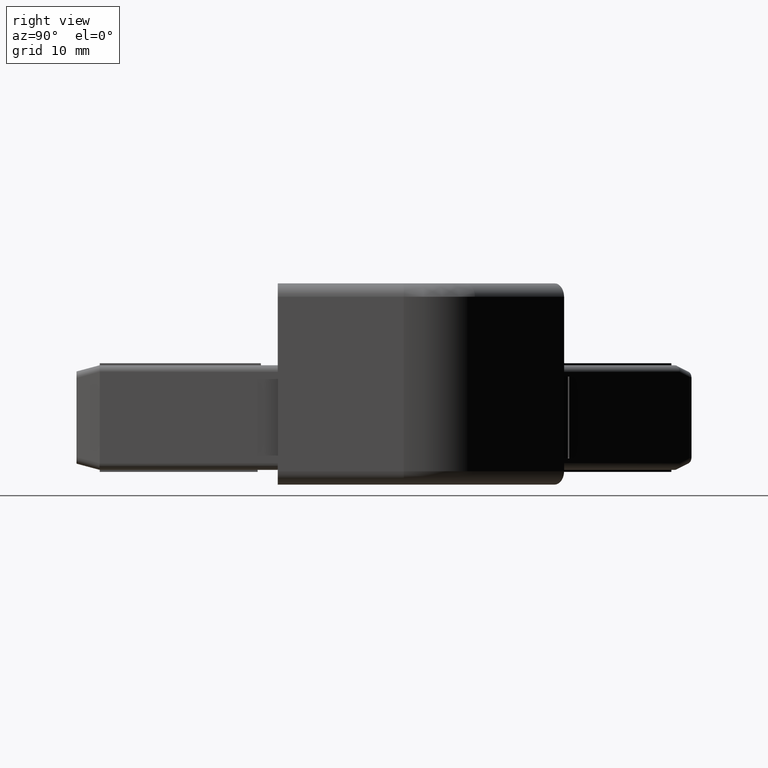
[diagram: clean part render]
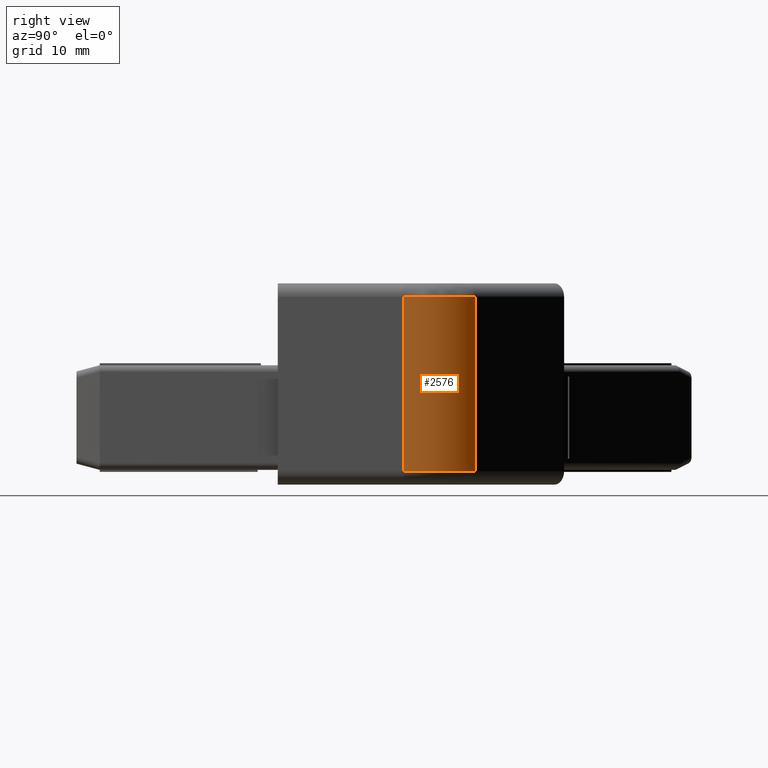
[diagram: same view with one face highlighted and labeled with its STEP entity id]
A machine part, right view. The second image highlights one B-rep face of the part: STEP entity #2576.
In plain terms, the highlighted cylindrical surface (partial cylindrical patch) has radius 15 mm, axis along (0, 0, -1).
Its self-contained STEP definition (entity closure, byte-faithful):
#1407=CARTESIAN_POINT('',(10.000000000000229,48.771067811866786,-8.000000000000155));
#1408=VERTEX_POINT('',#1407);
#1458=CARTESIAN_POINT('',(5.606601717798413,59.377669529665027,-8.000000000000156));
#1459=VERTEX_POINT('',#1458);
#1573=CARTESIAN_POINT('',(-4.999999999999772,48.771067811866786,-8.000000000000156));
#1574=DIRECTION('',(1.224647E-016,0.0,-1.0));
#1575=DIRECTION('',(-1.0,0.0,-1.224647E-016));
#1576=AXIS2_PLACEMENT_3D('',#1573,#1574,#1575);
#1577=CIRCLE('',#1576,14.999999999999970);
#1578=EDGE_CURVE('',#1459,#1408,#1577,.T.);
#2423=CARTESIAN_POINT('',(5.606601717798410,59.377669529664971,17.999999999999687));
#2424=VERTEX_POINT('',#2423);
#2474=CARTESIAN_POINT('',(10.000000000000226,48.771067811866786,17.999999999999687));
#2475=VERTEX_POINT('',#2474);
#2512=CARTESIAN_POINT('',(5.606601717798413,59.377669529664971,-8.000000000000156));
#2513=DIRECTION('',(0.0,0.0,1.0));
#2514=VECTOR('',#2513,25.999999999999844);
#2515=LINE('',#2512,#2514);
#2516=EDGE_CURVE('',#1459,#2424,#2515,.T.);
#2554=CARTESIAN_POINT('',(-4.999999999999774,48.771067811866786,19.999999999999687));
#2555=DIRECTION('',(1.224647E-016,0.0,-1.0));
#2556=DIRECTION('',(-1.0,0.0,-1.224647E-016));
#2557=AXIS2_PLACEMENT_3D('',#2554,#2555,#2556);
#2558=CYLINDRICAL_SURFACE('',#2557,14.999999999999970);
#2559=ORIENTED_EDGE('',*,*,#2516,.T.);
#2560=CARTESIAN_POINT('',(-4.999999999999774,48.771067811866786,17.999999999999687));
#2561=DIRECTION('',(-1.224647E-016,0.0,1.0));
#2562=DIRECTION('',(-1.0,0.0,-1.224647E-016));
#2563=AXIS2_PLACEMENT_3D('',#2560,#2561,#2562);
#2564=CIRCLE('',#2563,14.999999999999970);
#2565=EDGE_CURVE('',#2475,#2424,#2564,.T.);
#2566=ORIENTED_EDGE('',*,*,#2565,.F.);
#2567=CARTESIAN_POINT('',(10.000000000000229,48.771067811866786,-8.000000000000155));
#2568=DIRECTION('',(0.0,0.0,1.0));
#2569=VECTOR('',#2568,25.999999999999844);
#2570=LINE('',#2567,#2569);
#2571=EDGE_CURVE('',#1408,#2475,#2570,.T.);
#2572=ORIENTED_EDGE('',*,*,#2571,.F.);
#2573=ORIENTED_EDGE('',*,*,#1578,.F.);
#2574=EDGE_LOOP('',(#2559,#2566,#2572,#2573));
#2575=FACE_OUTER_BOUND('',#2574,.T.);
#2576=ADVANCED_FACE('',(#2575),#2558,.T.);